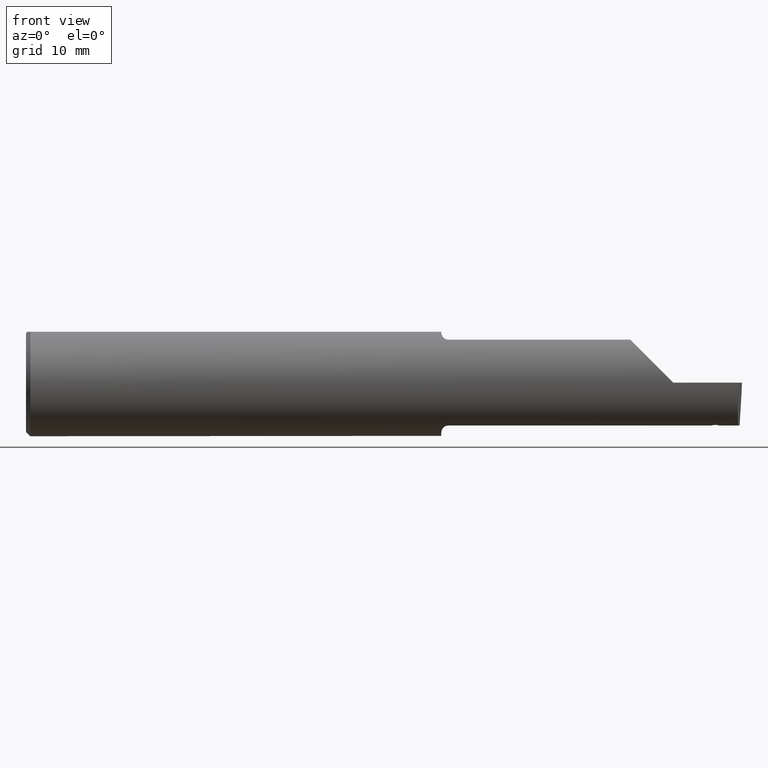
[diagram: clean part render]
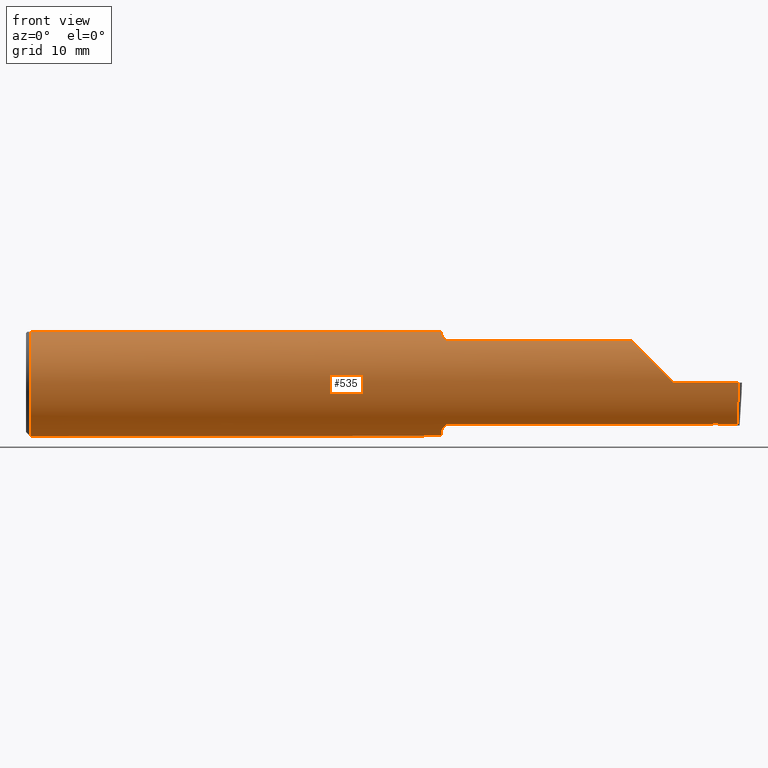
[diagram: same view with one face highlighted and labeled with its STEP entity id]
A machine part, front view. The second image highlights one B-rep face of the part: STEP entity #535.
In plain terms, the highlighted cylindrical surface (partial cylindrical patch) has radius 4.7587 mm, axis along (-1, -0, -0).
Its self-contained STEP definition (entity closure, byte-faithful):
#7 = CARTESIAN_POINT ( 'NONE',  ( 2.409711334101305003, -0.1206549051857608995, -0.1433262584267622763 ) ) ;
#14 = VERTEX_POINT ( 'NONE', #117 ) ;
#17 = CARTESIAN_POINT ( 'NONE',  ( 2.412530027118311438, -0.1208239089067355554, -0.1431838598422981168 ) ) ;
#25 = CIRCLE ( 'NONE', #911, 0.1873499999999999888 ) ;
#46 = EDGE_CURVE ( 'NONE', #318, #518, #651, .T. ) ;
#52 = VERTEX_POINT ( 'NONE', #992 ) ;
#53 = CARTESIAN_POINT ( 'NONE',  ( 2.418656183982054841, -0.1181482001644478946, -0.1454039965491109587 ) ) ;
#60 = CARTESIAN_POINT ( 'NONE',  ( 2.413939383223236312, -0.1209082226874898525, -0.1431126276278665010 ) ) ;
#61 = VECTOR ( 'NONE', #734, 39.37007874015748143 ) ;
#62 = CARTESIAN_POINT ( 'NONE',  ( 1.454475235432781233, -0.09757364237049404032, -0.1599863467203317124 ) ) ;
#66 = LINE ( 'NONE', #391, #403 ) ;
#76 = CARTESIAN_POINT ( 'NONE',  ( 1.450000000000000178, -0.06039039658753699025, 0.1773499999999999799 ) ) ;
#77 = CARTESIAN_POINT ( 'NONE',  ( 0.000000000000000000, 0.06039039658753697637, 0.1773499999999999799 ) ) ;
#81 =( BOUNDED_CURVE ( )  B_SPLINE_CURVE ( 3, ( #782, #634, #864, #933 ),
 .UNSPECIFIED., .F., .F. ) 
 B_SPLINE_CURVE_WITH_KNOTS ( ( 4, 4 ),
 ( 6.032366188922103412, 6.926893589830550368 ),
 .UNSPECIFIED. ) 
 CURVE ( )  GEOMETRIC_REPRESENTATION_ITEM ( )  RATIONAL_B_SPLINE_CURVE ( ( 1.000000000000000000, 0.9344226172588803170, 0.9344226172588803170, 1.000000000000000000 ) ) 
 REPRESENTATION_ITEM ( '' )  );
#85 = ORIENTED_EDGE ( 'NONE', *, *, #674, .F. ) ;
#87 = DIRECTION ( 'NONE',  ( 0.000000000000000000, 0.000000000000000000, 1.000000000000000000 ) ) ;
#96 = CARTESIAN_POINT ( 'NONE',  ( 1.474999999999999867, -0.1172600179964007477, 0.1461167706989302539 ) ) ;
#101 = ORIENTED_EDGE ( 'NONE', *, *, #121, .F. ) ;
#115 = EDGE_CURVE ( 'NONE', #569, #14, #66, .T. ) ;
#117 = CARTESIAN_POINT ( 'NONE',  ( 2.113883229301070532, -0.1172600179964006645, 0.1461167706989302539 ) ) ;
#121 = EDGE_CURVE ( 'NONE', #713, #810, #478, .T. ) ;
#143 = CARTESIAN_POINT ( 'NONE',  ( 1.450344683557281522, -0.07855153123406181936, 0.1701716388274757685 ) ) ;
#145 = CARTESIAN_POINT ( 'NONE',  ( 2.395680682407566042, -0.1172600179964005535, -0.1461167706989303094 ) ) ;
#147 = CARTESIAN_POINT ( 'NONE',  ( 0.01499999999999999944, -0.06039039658753697637, 0.1773499999999999799 ) ) ;
#151 = ORIENTED_EDGE ( 'NONE', *, *, #272, .T. ) ;
#154 = LINE ( 'NONE', #482, #61 ) ;
#158 = CARTESIAN_POINT ( 'NONE',  ( 1.452158970028690543, -0.09067355718685700394, 0.1641499263364887273 ) ) ;
#167 = ORIENTED_EDGE ( 'NONE', *, *, #575, .F. ) ;
#174 = CARTESIAN_POINT ( 'NONE',  ( 0.01499999999999999944, 0.000000000000000000, -0.1873499999999999888 ) ) ;
#179 = DIRECTION ( 'NONE',  ( 0.000000000000000000, 0.000000000000000000, -1.000000000000000000 ) ) ;
#180 = CARTESIAN_POINT ( 'NONE',  ( 2.485628535317038867, -0.1172600179964007477, -0.1461167706989302817 ) ) ;
#185 = EDGE_LOOP ( 'NONE', ( #843, #348, #189, #151, #902, #325, #380, #85, #897, #321, #981, #167, #644, #800, #101, #355, #410, #479, #736 ) ) ;
#189 = ORIENTED_EDGE ( 'NONE', *, *, #570, .T. ) ;
#197 = VERTEX_POINT ( 'NONE', #180 ) ;
#218 = LINE ( 'NONE', #388, #757 ) ;
#232 =( BOUNDED_CURVE ( )  B_SPLINE_CURVE ( 3, ( #413, #722, #347, #568 ),
 .UNSPECIFIED., .F., .T. ) 
 B_SPLINE_CURVE_WITH_KNOTS ( ( 4, 4 ),
 ( 4.712388980384688786, 5.606916381293136631 ),
 .UNSPECIFIED. ) 
 CURVE ( )  GEOMETRIC_REPRESENTATION_ITEM ( )  RATIONAL_B_SPLINE_CURVE ( ( 1.000000000000000000, 0.9344226172588802060, 0.9344226172588802060, 1.000000000000000000 ) ) 
 REPRESENTATION_ITEM ( '' )  );
#241 = VERTEX_POINT ( 'NONE', #658 ) ;
#251 = CARTESIAN_POINT ( 'NONE',  ( 1.450000000000000178, -0.06851976604679065053, -0.1743704796142198643 ) ) ;
#260 = CYLINDRICAL_SURFACE ( 'NONE', #537, 0.1873499999999999888 ) ;
#266 = DIRECTION ( 'NONE',  ( 0.000000000000000000, 0.000000000000000000, 1.000000000000000000 ) ) ;
#272 = EDGE_CURVE ( 'NONE', #241, #14, #232, .T. ) ;
#277 = EDGE_CURVE ( 'NONE', #810, #829, #580, .T. ) ;
#278 = CARTESIAN_POINT ( 'NONE',  ( 1.450000000000000178, -0.06851976604679065053, 0.1743704796142198643 ) ) ;
#279 = B_SPLINE_CURVE_WITH_KNOTS ( 'NONE', 3,
 ( #457, #53, #314, #556, #625, #705 ),
 .UNSPECIFIED., .F., .F.,
 ( 4, 2, 4 ),
 ( 0.0002929594593277004663, 0.0003858346012047203857, 0.0004787097430817403051 ),
 .UNSPECIFIED. ) ;
#283 = DIRECTION ( 'NONE',  ( -1.000000000000000000, -0.000000000000000000, -0.000000000000000000 ) ) ;
#300 = CARTESIAN_POINT ( 'NONE',  ( 1.450000000000000178, -0.06851976604679065053, 0.1743704796142198643 ) ) ;
#301 = CIRCLE ( 'NONE', #519, 0.1873499999999999888 ) ;
#302 = CARTESIAN_POINT ( 'NONE',  ( 1.451062863587533558, -0.08334999999998814191, 0.1677879614275171183 ) ) ;
#314 = CARTESIAN_POINT ( 'NONE',  ( 2.418039946986159983, -0.1189983863730098290, -0.1447074684966337121 ) ) ;
#318 = VERTEX_POINT ( 'NONE', #300 ) ;
#320 = CARTESIAN_POINT ( 'NONE',  ( 1.472868998470238555, -0.1172600179964007339, -0.1461167706989302539 ) ) ;
#321 = ORIENTED_EDGE ( 'NONE', *, *, #964, .F. ) ;
#325 = ORIENTED_EDGE ( 'NONE', *, *, #971, .F. ) ;
#332 = CARTESIAN_POINT ( 'NONE',  ( 1.454075010165368331, -0.09778159395695855405, 0.1599914159748311027 ) ) ;
#344 = EDGE_CURVE ( 'NONE', #197, #385, #81, .T. ) ;
#347 = CARTESIAN_POINT ( 'NONE',  ( 2.150065971957467070, -0.1623470442677541759, 0.1099340280425336880 ) ) ;
#348 = ORIENTED_EDGE ( 'NONE', *, *, #344, .T. ) ;
#352 = CARTESIAN_POINT ( 'NONE',  ( 1.474999999999999867, -0.1172600179964006922, -0.1461167706989302817 ) ) ;
#354 = B_SPLINE_CURVE_WITH_KNOTS ( 'NONE', 3,
 ( #942, #17, #724, #7, #721, #642, #653, #966, #813, #882 ),
 .UNSPECIFIED., .F., .F.,
 ( 4, 3, 3, 4 ),
 ( 0.000000000000000000, 0.0001077217780717904221, 0.0002693044573318728336, 0.0004308871484204464752 ),
 .UNSPECIFIED. ) ;
#355 = ORIENTED_EDGE ( 'NONE', *, *, #935, .F. ) ;
#361 = CARTESIAN_POINT ( 'NONE',  ( 1.470724556588812293, -0.1172600179964060768, 0.1461167706989260906 ) ) ;
#366 = B_SPLINE_CURVE_WITH_KNOTS ( 'NONE', 3,
 ( #553, #766, #937, #145 ),
 .UNSPECIFIED., .F., .F.,
 ( 4, 4 ),
 ( 4.944722691628275482E-18, 9.282772203677387354E-05 ),
 .UNSPECIFIED. ) ;
#370 = B_SPLINE_CURVE_WITH_KNOTS ( 'NONE', 3,
 ( #491, #158, #332, #993, #520, #430, #361, #444 ),
 .UNSPECIFIED., .F., .F.,
 ( 4, 2, 2, 4 ),
 ( 0.0004561457252213468741, 0.001084815134961807179, 0.001399149839832033266, 0.001713484544702259353 ),
 .UNSPECIFIED. ) ;
#380 = ORIENTED_EDGE ( 'NONE', *, *, #46, .F. ) ;
#385 = VERTEX_POINT ( 'NONE', #845 ) ;
#387 = CIRCLE ( 'NONE', #807, 0.1873499999999999888 ) ;
#388 = CARTESIAN_POINT ( 'NONE',  ( 1.941500000000000004, -0.1172600179964007477, -0.1461167706989302817 ) ) ;
#391 = CARTESIAN_POINT ( 'NONE',  ( 1.941500000000000004, -0.1172600179964007477, 0.1461167706989302817 ) ) ;
#393 = CARTESIAN_POINT ( 'NONE',  ( 1.451062863587535556, -0.08334999999999985476, -0.1677879614275112619 ) ) ;
#403 = VECTOR ( 'NONE', #851, 39.37007874015748143 ) ;
#406 = EDGE_CURVE ( 'NONE', #603, #52, #366, .T. ) ;
#407 = CARTESIAN_POINT ( 'NONE',  ( 1.941500000000000004, -0.1172600179964007477, -0.1461167706989302817 ) ) ;
#408 = DIRECTION ( 'NONE',  ( -1.000000000000000000, -0.000000000000000000, -0.000000000000000000 ) ) ;
#410 = ORIENTED_EDGE ( 'NONE', *, *, #406, .F. ) ;
#413 = CARTESIAN_POINT ( 'NONE',  ( 2.260000000000000231, -0.1873499999999999888, 2.939152317953647352E-17 ) ) ;
#418 = EDGE_CURVE ( 'NONE', #197, #564, #218, .T. ) ;
#421 = CARTESIAN_POINT ( 'NONE',  ( 0.000000000000000000, 0.000000000000000000, 0.000000000000000000 ) ) ;
#425 = EDGE_CURVE ( 'NONE', #829, #640, #1033, .T. ) ;
#430 = CARTESIAN_POINT ( 'NONE',  ( 1.466924463282974544, -0.1152182125075827818, 0.1477647100440765693 ) ) ;
#444 = CARTESIAN_POINT ( 'NONE',  ( 1.474999999999999867, -0.1172600179964007477, 0.1461167706989302539 ) ) ;
#456 = VERTEX_POINT ( 'NONE', #60 ) ;
#457 = CARTESIAN_POINT ( 'NONE',  ( 2.419158874588541064, -0.1172600179964005812, -0.1461167706989303372 ) ) ;
#466 = EDGE_CURVE ( 'NONE', #456, #603, #354, .T. ) ;
#472 = DIRECTION ( 'NONE',  ( 0.000000000000000000, 0.000000000000000000, -1.000000000000000000 ) ) ;
#478 = B_SPLINE_CURVE_WITH_KNOTS ( 'NONE', 3,
 ( #1036, #320, #559, #784, #700, #635, #639, #1023, #62, #953, #872, #631 ),
 .UNSPECIFIED., .F., .F.,
 ( 4, 2, 2, 2, 2, 4 ),
 ( 1.967976973658592312E-07, 0.0001599896235275547862, 0.0003197824493577436779, 0.0006393681010181210276, 0.0009589537526784982146, 0.001278539404338875510 ),
 .UNSPECIFIED. ) ;
#479 = ORIENTED_EDGE ( 'NONE', *, *, #466, .F. ) ;
#482 = CARTESIAN_POINT ( 'NONE',  ( 3.749399456654646757E-32, -0.1873499999999999888, 3.061616997868384127E-16 ) ) ;
#491 = CARTESIAN_POINT ( 'NONE',  ( 1.451062863587533558, -0.08334999999998814191, 0.1677879614275171183 ) ) ;
#493 = EDGE_CURVE ( 'NONE', #804, #908, #806, .T. ) ;
#502 = VECTOR ( 'NONE', #714, 39.37007874015748143 ) ;
#505 = CARTESIAN_POINT ( 'NONE',  ( 2.419158874588541064, -0.1172600179964005812, -0.1461167706989303372 ) ) ;
#518 = VERTEX_POINT ( 'NONE', #890 ) ;
#519 = AXIS2_PLACEMENT_3D ( 'NONE', #754, #748, #179 ) ;
#520 = CARTESIAN_POINT ( 'NONE',  ( 1.461319809340845932, -0.1102629523538396217, 0.1514982751257169247 ) ) ;
#523 = CARTESIAN_POINT ( 'NONE',  ( 2.397027415019522323, -0.1198904431849873858, -0.1439663298584335782 ) ) ;
#527 = VERTEX_POINT ( 'NONE', #174 ) ;
#535 = ADVANCED_FACE ( 'NONE', ( #952 ), #260, .T. ) ;
#537 = AXIS2_PLACEMENT_3D ( 'NONE', #421, #572, #87 ) ;
#540 = DIRECTION ( 'NONE',  ( 1.000000000000000000, 0.000000000000000000, 0.000000000000000000 ) ) ;
#553 = CARTESIAN_POINT ( 'NONE',  ( 2.397027415019522323, -0.1198904431849873858, -0.1439663298584335782 ) ) ;
#556 = CARTESIAN_POINT ( 'NONE',  ( 2.416359193354026047, -0.1204125614959958568, -0.1435328618542018042 ) ) ;
#559 = CARTESIAN_POINT ( 'NONE',  ( 1.470804171164107332, -0.1167508198888949633, -0.1465276362740037530 ) ) ;
#564 = VERTEX_POINT ( 'NONE', #505 ) ;
#567 = VECTOR ( 'NONE', #408, 39.37007874015748143 ) ;
#568 = CARTESIAN_POINT ( 'NONE',  ( 2.113883229301070532, -0.1172600179964006645, 0.1461167706989302539 ) ) ;
#569 = VERTEX_POINT ( 'NONE', #96 ) ;
#570 = EDGE_CURVE ( 'NONE', #385, #241, #154, .T. ) ;
#572 = DIRECTION ( 'NONE',  ( -1.000000000000000000, -0.000000000000000000, -0.000000000000000000 ) ) ;
#575 = EDGE_CURVE ( 'NONE', #640, #1019, #792, .T. ) ;
#578 = DIRECTION ( 'NONE',  ( 1.000000000000000000, 0.000000000000000000, 0.000000000000000000 ) ) ;
#580 = B_SPLINE_CURVE_WITH_KNOTS ( 'NONE', 3,
 ( #585, #649, #962, #251 ),
 .UNSPECIFIED., .F., .F.,
 ( 4, 4 ),
 ( 0.001278539404338875510, 0.001694873732696221573 ),
 .UNSPECIFIED. ) ;
#582 = LINE ( 'NONE', #407, #502 ) ;
#585 = CARTESIAN_POINT ( 'NONE',  ( 1.451062863587535556, -0.08334999999999985476, -0.1677879614275112619 ) ) ;
#600 = CARTESIAN_POINT ( 'NONE',  ( 1.449999999999999512, -0.07360907839729495528, 0.1723706084642000758 ) ) ;
#603 = VERTEX_POINT ( 'NONE', #523 ) ;
#610 = EDGE_CURVE ( 'NONE', #1019, #527, #387, .T. ) ;
#618 = VECTOR ( 'NONE', #578, 39.37007874015748143 ) ;
#625 = CARTESIAN_POINT ( 'NONE',  ( 2.415198327294085345, -0.1209835379684912060, -0.1430489977657221079 ) ) ;
#631 = CARTESIAN_POINT ( 'NONE',  ( 1.451062863587535556, -0.08334999999999985476, -0.1677879614275112619 ) ) ;
#634 = CARTESIAN_POINT ( 'NONE',  ( 2.485002117657001186, -0.1623470442677541481, -0.1099340280425338545 ) ) ;
#635 = CARTESIAN_POINT ( 'NONE',  ( 1.461340974786206504, -0.1102890168945986904, -0.1514792188789464145 ) ) ;
#639 = CARTESIAN_POINT ( 'NONE',  ( 1.459228130464466533, -0.1072797540790367127, -0.1536407449207395637 ) ) ;
#640 = VERTEX_POINT ( 'NONE', #743 ) ;
#642 = CARTESIAN_POINT ( 'NONE',  ( 2.405483318229653555, -0.1204009296127680761, -0.1435397724056745594 ) ) ;
#644 = ORIENTED_EDGE ( 'NONE', *, *, #425, .F. ) ;
#649 = CARTESIAN_POINT ( 'NONE',  ( 1.450346246588685162, -0.07856197451716395719, -0.1701664510438046507 ) ) ;
#651 = B_SPLINE_CURVE_WITH_KNOTS ( 'NONE', 3,
 ( #278, #600, #143, #302 ),
 .UNSPECIFIED., .F., .F.,
 ( 4, 4 ),
 ( 4.423516731080786679E-05, 0.0004561457252213468741 ),
 .UNSPECIFIED. ) ;
#653 = CARTESIAN_POINT ( 'NONE',  ( 2.403369331817185817, -0.1202735191733851211, -0.1436464516987778217 ) ) ;
#658 = CARTESIAN_POINT ( 'NONE',  ( 2.260000000000000231, -0.1873499999999999888, 2.939152317953647352E-17 ) ) ;
#674 = EDGE_CURVE ( 'NONE', #908, #318, #301, .T. ) ;
#693 = CARTESIAN_POINT ( 'NONE',  ( 1.450000000000000178, 0.000000000000000000, 0.000000000000000000 ) ) ;
#700 = CARTESIAN_POINT ( 'NONE',  ( 1.465551048069661855, -0.1140002044565611855, -0.1486821290834929865 ) ) ;
#705 = CARTESIAN_POINT ( 'NONE',  ( 2.413939383223236312, -0.1209082226874898525, -0.1431126276278665010 ) ) ;
#713 = VERTEX_POINT ( 'NONE', #352 ) ;
#714 = DIRECTION ( 'NONE',  ( -1.000000000000000000, -0.000000000000000000, -0.000000000000000000 ) ) ;
#721 = CARTESIAN_POINT ( 'NONE',  ( 2.407597318986807178, -0.1205280583919685622, -0.1434330405896829252 ) ) ;
#722 = CARTESIAN_POINT ( 'NONE',  ( 2.202189699843949633, -0.1873500000000000998, 0.05781030015605104211 ) ) ;
#724 = CARTESIAN_POINT ( 'NONE',  ( 2.411120677412139646, -0.1207394697090256874, -0.1432550703231405820 ) ) ;
#734 = DIRECTION ( 'NONE',  ( -1.000000000000000000, -0.000000000000000000, -0.000000000000000000 ) ) ;
#736 = ORIENTED_EDGE ( 'NONE', *, *, #744, .F. ) ;
#740 = AXIS2_PLACEMENT_3D ( 'NONE', #693, #540, #472 ) ;
#743 = CARTESIAN_POINT ( 'NONE',  ( 1.450000000000000178, 0.06039039658754216666, 0.1773499999999999799 ) ) ;
#744 = EDGE_CURVE ( 'NONE', #564, #456, #279, .T. ) ;
#748 = DIRECTION ( 'NONE',  ( 1.000000000000000000, 0.000000000000000000, 0.000000000000000000 ) ) ;
#752 = CARTESIAN_POINT ( 'NONE',  ( 0.01499999999999756042, 0.06039039658754215278, 0.1773499999999999799 ) ) ;
#754 = CARTESIAN_POINT ( 'NONE',  ( 1.450000000000000178, 0.000000000000000000, 0.000000000000000000 ) ) ;
#757 = VECTOR ( 'NONE', #787, 39.37007874015748143 ) ;
#766 = CARTESIAN_POINT ( 'NONE',  ( 2.396579684703954438, -0.1190198114723613476, -0.1446913634269095250 ) ) ;
#782 = CARTESIAN_POINT ( 'NONE',  ( 2.485628535317038867, -0.1172600179964007477, -0.1461167706989302817 ) ) ;
#784 = CARTESIAN_POINT ( 'NONE',  ( 1.467163414264744503, -0.1151183835841406988, -0.1478135984872521180 ) ) ;
#787 = DIRECTION ( 'NONE',  ( -1.000000000000000000, -0.000000000000000000, -0.000000000000000000 ) ) ;
#792 = LINE ( 'NONE', #77, #567 ) ;
#797 = CARTESIAN_POINT ( 'NONE',  ( 1.450000000000000178, -0.06851976604679065053, -0.1743704796142198643 ) ) ;
#800 = ORIENTED_EDGE ( 'NONE', *, *, #277, .F. ) ;
#804 = VERTEX_POINT ( 'NONE', #147 ) ;
#806 = LINE ( 'NONE', #876, #618 ) ;
#807 = AXIS2_PLACEMENT_3D ( 'NONE', #978, #283, #266 ) ;
#810 = VERTEX_POINT ( 'NONE', #393 ) ;
#813 = CARTESIAN_POINT ( 'NONE',  ( 2.399141372988756071, -0.1200184166134033448, -0.1438597577796441318 ) ) ;
#829 = VERTEX_POINT ( 'NONE', #797 ) ;
#843 = ORIENTED_EDGE ( 'NONE', *, *, #418, .F. ) ;
#845 = CARTESIAN_POINT ( 'NONE',  ( 2.487009473749072441, -0.1873499999999999055, 0.000000000000000000 ) ) ;
#851 = DIRECTION ( 'NONE',  ( 1.000000000000000000, 0.000000000000000000, 0.000000000000000000 ) ) ;
#864 = CARTESIAN_POINT ( 'NONE',  ( 2.485494735025390867, -0.1873500000000000443, -0.05781030015605120170 ) ) ;
#872 = CARTESIAN_POINT ( 'NONE',  ( 1.451612951569643650, -0.08702537370779851733, -0.1659621904011591709 ) ) ;
#876 = CARTESIAN_POINT ( 'NONE',  ( 0.000000000000000000, -0.06039039658753697637, 0.1773499999999999799 ) ) ;
#880 = DIRECTION ( 'NONE',  ( -1.000000000000000000, -0.000000000000000000, -0.000000000000000000 ) ) ;
#882 = CARTESIAN_POINT ( 'NONE',  ( 2.397027415019522323, -0.1198904431849873858, -0.1439663298584335782 ) ) ;
#890 = CARTESIAN_POINT ( 'NONE',  ( 1.451062863587533558, -0.08334999999998814191, 0.1677879614275171183 ) ) ;
#897 = ORIENTED_EDGE ( 'NONE', *, *, #493, .F. ) ;
#902 = ORIENTED_EDGE ( 'NONE', *, *, #115, .F. ) ;
#908 = VERTEX_POINT ( 'NONE', #76 ) ;
#911 = AXIS2_PLACEMENT_3D ( 'NONE', #1038, #880, #1034 ) ;
#933 = CARTESIAN_POINT ( 'NONE',  ( 2.487009473749072441, -0.1873499999999999055, 0.000000000000000000 ) ) ;
#935 = EDGE_CURVE ( 'NONE', #52, #713, #582, .T. ) ;
#937 = CARTESIAN_POINT ( 'NONE',  ( 2.396130719550509269, -0.1181429413419252256, -0.1454082168013152987 ) ) ;
#942 = CARTESIAN_POINT ( 'NONE',  ( 2.413939383223236312, -0.1209082226874898525, -0.1431126276278665010 ) ) ;
#952 = FACE_OUTER_BOUND ( 'NONE', #185, .T. ) ;
#953 = CARTESIAN_POINT ( 'NONE',  ( 1.452380638915945266, -0.09060738690120603844, -0.1640321561807270845 ) ) ;
#962 = CARTESIAN_POINT ( 'NONE',  ( 1.450000000000000178, -0.07359296612170562746, -0.1723769398647691520 ) ) ;
#964 = EDGE_CURVE ( 'NONE', #527, #804, #25, .T. ) ;
#966 = CARTESIAN_POINT ( 'NONE',  ( 2.401255345249971640, -0.1201461087246755710, -0.1437531309996901152 ) ) ;
#971 = EDGE_CURVE ( 'NONE', #518, #569, #370, .T. ) ;
#978 = CARTESIAN_POINT ( 'NONE',  ( 0.01499999999999999944, 0.000000000000000000, 0.000000000000000000 ) ) ;
#981 = ORIENTED_EDGE ( 'NONE', *, *, #610, .F. ) ;
#992 = CARTESIAN_POINT ( 'NONE',  ( 2.395680682407566042, -0.1172600179964005535, -0.1461167706989303094 ) ) ;
#993 = CARTESIAN_POINT ( 'NONE',  ( 1.459249444250374284, -0.1073163636891284328, 0.1536158790136665786 ) ) ;
#1019 = VERTEX_POINT ( 'NONE', #752 ) ;
#1023 = CARTESIAN_POINT ( 'NONE',  ( 1.455806801261506633, -0.1009700360460131507, -0.1578590382459147401 ) ) ;
#1033 = CIRCLE ( 'NONE', #740, 0.1873499999999999888 ) ;
#1034 = DIRECTION ( 'NONE',  ( 0.000000000000000000, 0.000000000000000000, 1.000000000000000000 ) ) ;
#1036 = CARTESIAN_POINT ( 'NONE',  ( 1.474999999999999867, -0.1172600179964006922, -0.1461167706989302817 ) ) ;
#1038 = CARTESIAN_POINT ( 'NONE',  ( 0.01499999999999999944, 0.000000000000000000, 0.000000000000000000 ) ) ;